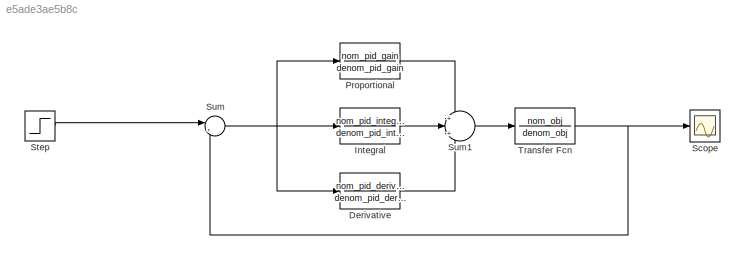
MODEL slx_e5ade3ae5b8c
KIND model
CONFIG AbsTol = auto
CONFIG EnableMultiTasking = off
CONFIG FixedStep = 0.0001
CONFIG MaxStep = auto
CONFIG MinStep = auto
CONFIG RelTol = 1e-3
CONFIG SampleTimeConstraint = Unconstrained
CONFIG SolverName = FixedStepAuto
CONFIG StartTime = 0.0
CONFIG StopTime = 100
BLOCK [TransferFcn] Derivative
  Denominator = denom_pid_derivative
  Numerator = nom_pid_derivative
BLOCK [TransferFcn] Integral
  Denominator = denom_pid_integral
  Numerator = nom_pid_integral
BLOCK [TransferFcn] Proportional
  Denominator = denom_pid_gain
  Numerator = nom_pid_gain
BLOCK [Scope] Scope
  Floating = off
  NumInputPorts = 1
  ScopeSpecificationString = Simulink.scopes.TimeScopeBlockCfg('CurrentConfiguration', extmgr.ConfigurationSet(extmgr.Configuration('Core','General UI',true),extmgr.Configuration('Core','Source UI',true),extmgr.Configuration('Sources','WiredSimulink',true),extmgr.Configuration('Visuals','Time Domain',true,'SerializedDisplays',{struct('MinYLimReal','-0.07119','MaxYLimReal','0.64073','YLabelReal','','MinYLimMag','0.00000','MaxY...<+1387ch>
BLOCK [Step] Step
  After = final_value
  Before = initial_value
  SampleTime = 0
  Time = step_time
BLOCK [Sum] Sum
  Inputs = |+-
BLOCK [Sum] Sum1
  Inputs = +|+|+
BLOCK [TransferFcn] Transfer Fcn
  Denominator = denom_obj
  Numerator = nom_obj
LINE Derivative:1 -> Sum1:3
LINE Integral:1 -> Sum1:2
LINE Proportional:1 -> Sum1:1
LINE Step:1 -> Sum:1
LINE Sum1:1 -> Transfer Fcn:1
NET Sum:1 -> Derivative:1, Integral:1, Proportional:1
NET Transfer Fcn:1 -> Scope:1, Sum:2
note: NET lines group one-source signal fan-out (src -> all destinations, sorted); 1:1 wires keep LINE
